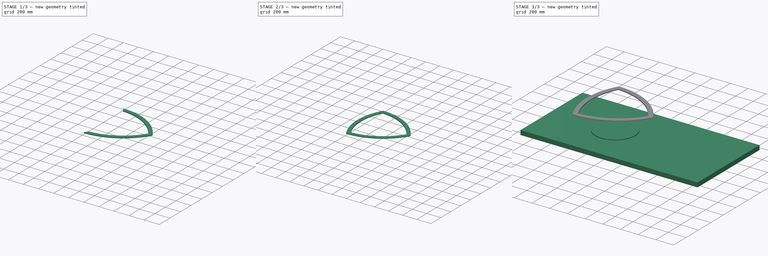
[diagram: build sequence overview — one tinted view per stage of 3, left to right]
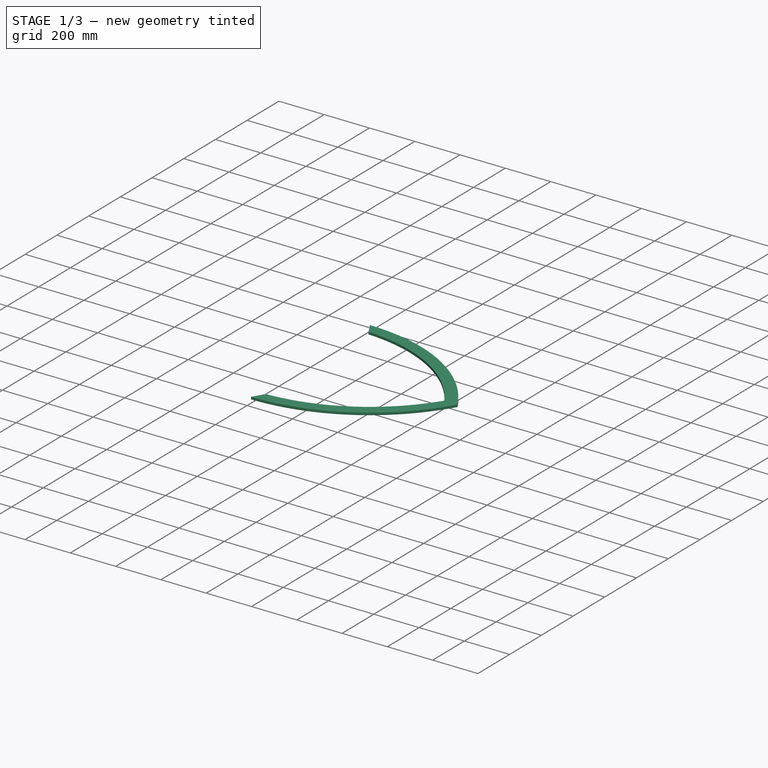
[diagram: stage 1 of 3 — iso view after this stage's code; geometry added in this stage tinted green]
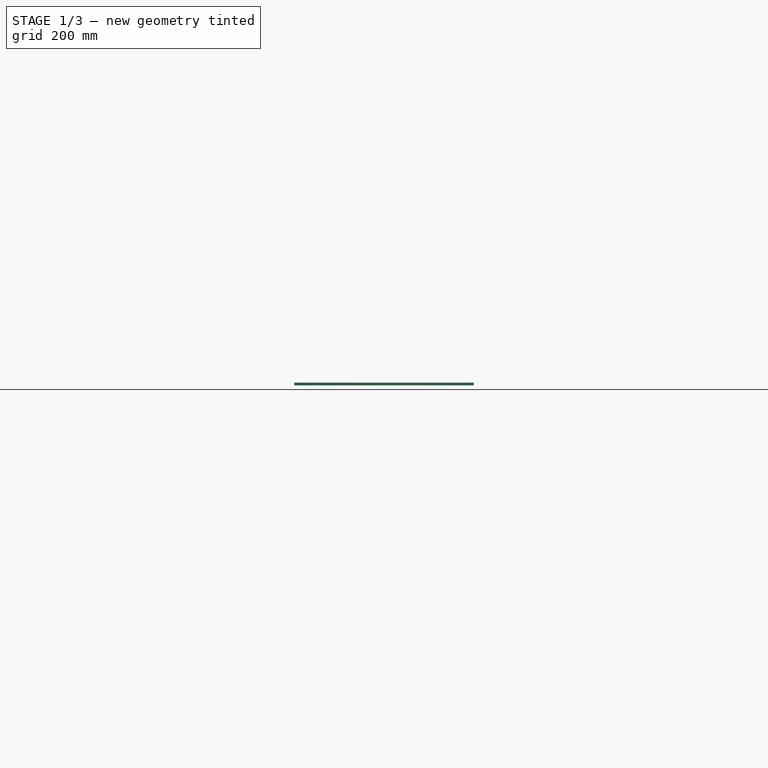
[diagram: stage 1 of 3 — front view after this stage's code; geometry added in this stage tinted green]
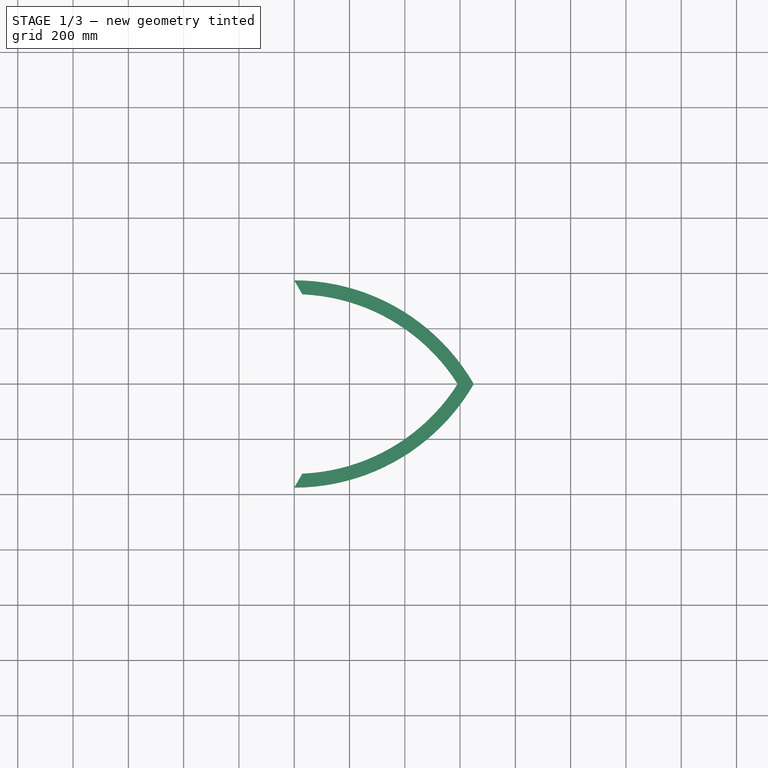
[diagram: stage 1 of 3 — top view after this stage's code; geometry added in this stage tinted green]
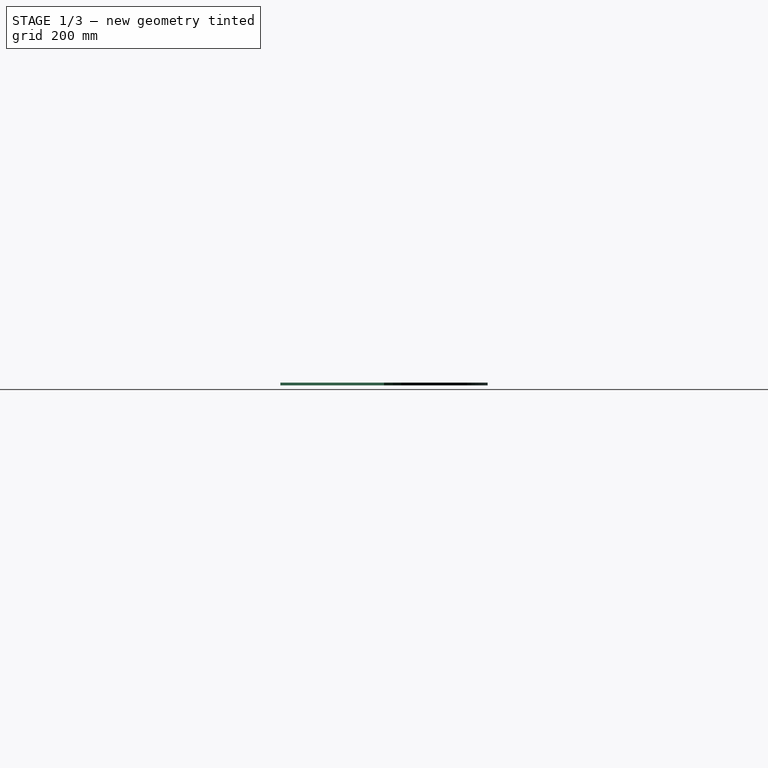
[diagram: stage 1 of 3 — right view after this stage's code; geometry added in this stage tinted green]
FCSTD DOCUMENT  (FreeCAD 0.21R33771 (Git))
Label: Dartring
License: All rights reserved
LicenseURL: https://en.wikipedia.org/wiki/All_rights_reserved
objects: Sketcher::SketchObject×3, PartDesign::Pad×3, PartDesign::Body×2, PartDesign::ShapeBinder×1, Part::Cylinder×1, Part::Box×1, Part::Fuse×1
note: 15 computed .brp shape members not serialized (recipe doc carries the construction recipe); baked Part::Feature solids carry a one-line shape summary decoded from their .brp

FEATURE [Sketcher::SketchObject] Sketch003
  FullyConstrained = true
  MapMode = 5
  Support = -> [XY_Plane003]
  sketch-geometry (4):
    g0: ArcOfCircle CenterX=0 CenterY=-375 CenterZ=0 NormalX=0 NormalY=0 NormalZ=1 AngleXU=0 Radius=750 StartAngle=0.523599 EndAngle=1.5708
    g1: ArcOfCircle CenterX=0 CenterY=-375 CenterZ=0 NormalX=0 NormalY=0 NormalZ=1 AngleXU=0 Radius=700 StartAngle=0.565353 EndAngle=1.52904
    g2: LineSegment StartX=0 StartY=375 StartZ=0 EndX=29.2198 EndY=324.39 EndZ=0
    g3: LineSegment StartX=591.08 StartY=1.137e-13 StartZ=0 EndX=649.519 EndY=0 EndZ=0
  constraints (15):
    c: PointOnObject(g0,g-2)
    c: PointOnObject(g0,g-1)
    c: PointOnObject(g0,g-2)
    c: Angle(g0) = 1.0472
    c: Radius(g0) = 750
    c: Coincident(g1,g0)
    c: PointOnObject(g1,g-1)
    c: Coincident(g2,g0)
    c: Coincident(g2,g1)
    c: Radius(g1) = 700
    c: Angle(g-2,g2) = 0.523599
    c: Coincident(g3,g1)
    c: Coincident(g3,g0)
    c: DistanceY(g-1,g0) = 375
    c: DistanceX(g-1,g0) = 649.519
FEATURE [Sketcher::SketchObject] Sketch004
  FullyConstrained = true
  MapMode = 5
  Support = -> [XY_Plane003]
  sketch-geometry (4):
    g0: ArcOfCircle CenterX=0 CenterY=375 CenterZ=0 NormalX=0 NormalY=0 NormalZ=1 AngleXU=0 Radius=750 StartAngle=4.71239 EndAngle=5.75959
    g1: ArcOfCircle CenterX=0 CenterY=375 CenterZ=0 NormalX=0 NormalY=0 NormalZ=1 AngleXU=0 Radius=700 StartAngle=4.75414 EndAngle=5.71783
    g2: LineSegment StartX=-1.378e-13 StartY=-375 StartZ=0 EndX=29.2198 EndY=-324.39 EndZ=0
    g3: LineSegment StartX=591.08 StartY=-5.68e-14 StartZ=0 EndX=649.519 EndY=0 EndZ=0
  constraints (13):
    c: PointOnObject(g0,g-2)
    c: PointOnObject(g0,g-2)
    c: PointOnObject(g0,g-1)
    c: Angle(g0) = 1.0472
    c: Radius(g0) = 750
    c: Coincident(g1,g0)
    c: PointOnObject(g1,g-1)
    c: Radius(g1) = 700
    c: Coincident(g2,g0)
    c: Coincident(g2,g1)
    c: Angle(g2,g-2) = 0.523599
    c: Coincident(g3,g1)
    c: Coincident(g3,g0)
FEATURE [Sketcher::SketchObject] Sketch005
  FullyConstrained = true
  MapMode = 5
  Support = -> [XY_Plane003]
  sketch-geometry (4):
    g0: ArcOfCircle CenterX=649.519 CenterY=0 CenterZ=0 NormalX=0 NormalY=0 NormalZ=1 AngleXU=0 Radius=750 StartAngle=2.61799 EndAngle=3.66519
    g1: LineSegment StartX=0 StartY=-375 StartZ=0 EndX=29.2198 EndY=-324.39 EndZ=0
    g2: ArcOfCircle CenterX=649.519 CenterY=0 CenterZ=0 NormalX=0 NormalY=0 NormalZ=1 AngleXU=0 Radius=700 StartAngle=2.65975 EndAngle=3.62344
    g3: LineSegment StartX=0 StartY=375 StartZ=0 EndX=29.2198 EndY=324.39 EndZ=0
  constraints (13):
    c: PointOnObject(g0,g-1)
    c: PointOnObject(g0,g-2)
    c: PointOnObject(g0,g-2)
    c: Radius(g0) = 750
    c: Angle(g0) = 1.0472
    c: Coincident(g1,g0)
    c: Angle(g-1,g1) = 1.0472
    c: Coincident(g2,g0)
    c: Coincident(g2,g1)
    c: Radius(g2) = 700
    c: Coincident(g3,g0)
    c: Coincident(g3,g2)
    c: Angle(g-2,g3) = 0.523599
FEATURE [PartDesign::Pad] Pad003
  Direction = (0,0,1)
  Length = 10
  Length2 = 10
  Profile = -> Sketch003
  ReferenceAxis = -> Sketch003 [N_Axis]
  Type = 0
FEATURE [PartDesign::Body] Body003
  Group = -> [Sketch003,Pad003,Sketch005,Pad005,Sketch004]
  Origin = -> Origin003
  Tip = -> Pad005
FEATURE [PartDesign::ShapeBinder] ShapeBinder
  Support = -> [Sketch004]
  TraceSupport = false
FEATURE [PartDesign::Pad] Pad
  Direction = (0,0,1)
  Length = 10
  Length2 = 10
  Profile = -> ShapeBinder
  Type = 0
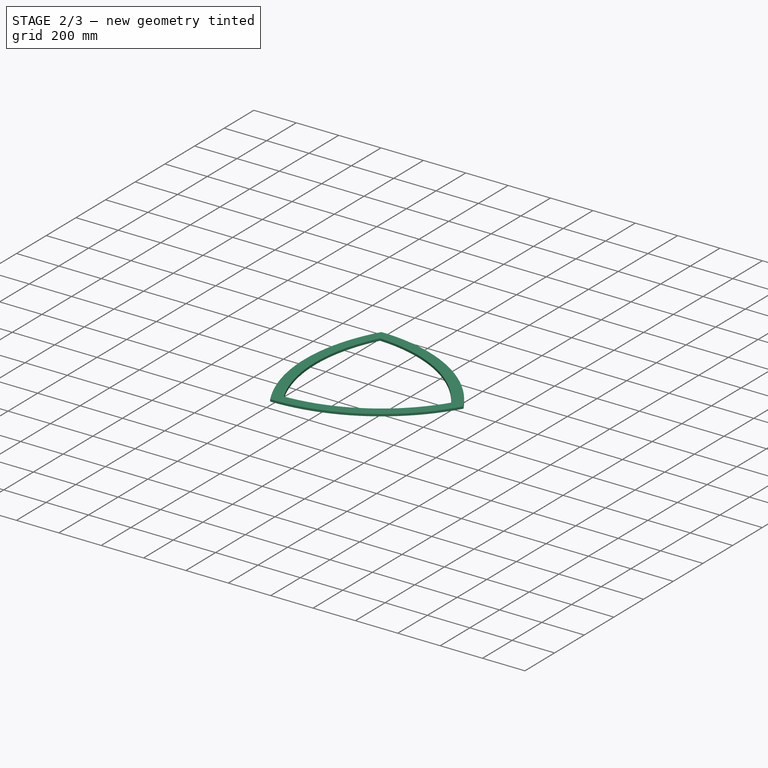
[diagram: stage 2 of 3 — iso view after this stage's code; geometry added in this stage tinted green]
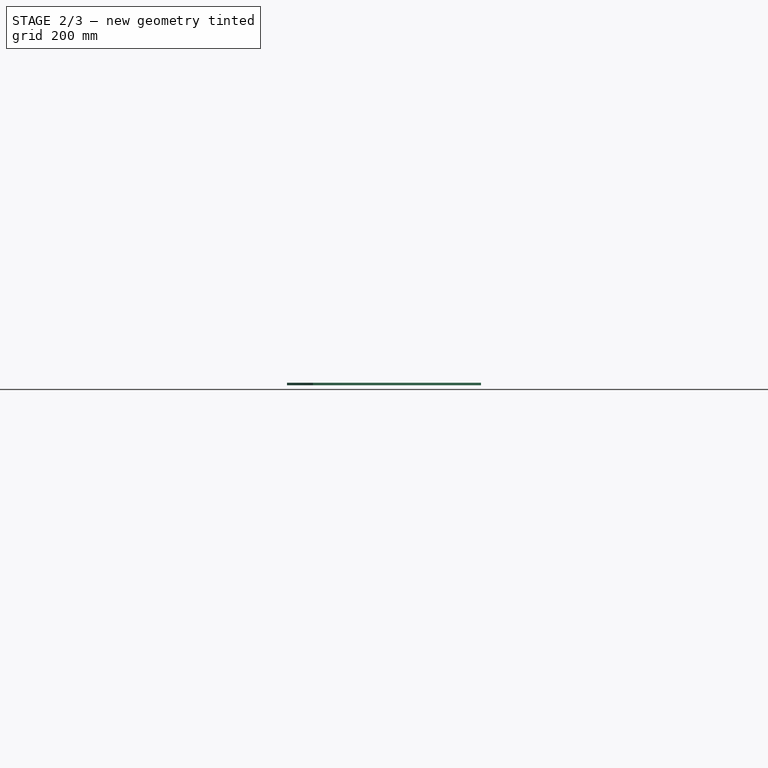
[diagram: stage 2 of 3 — front view after this stage's code; geometry added in this stage tinted green]
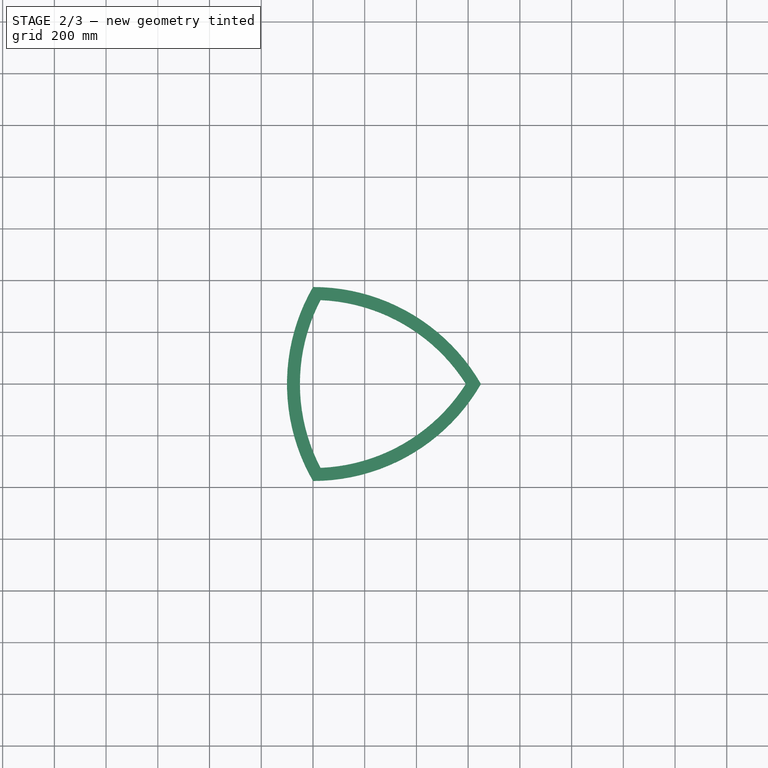
[diagram: stage 2 of 3 — top view after this stage's code; geometry added in this stage tinted green]
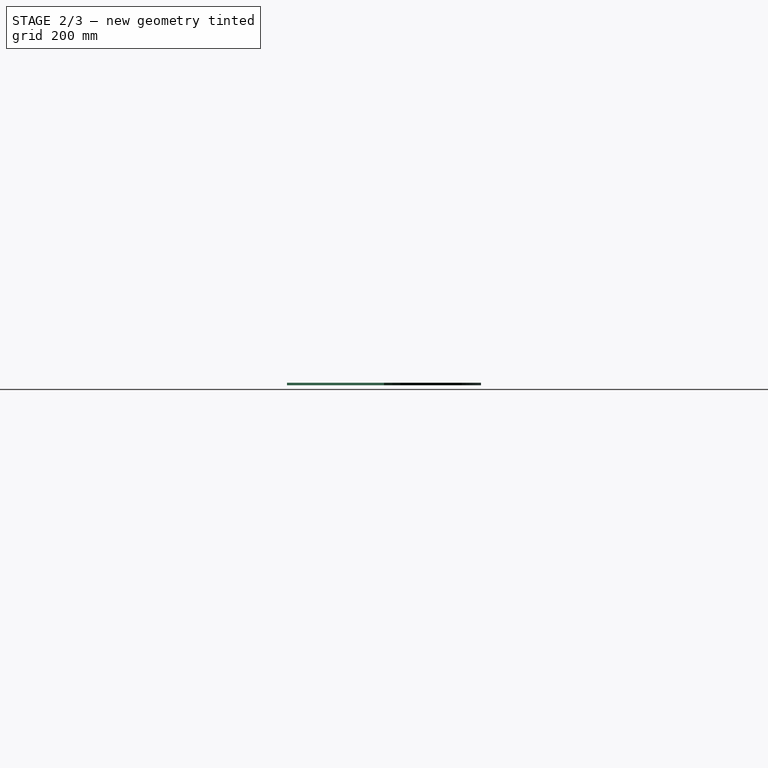
[diagram: stage 2 of 3 — right view after this stage's code; geometry added in this stage tinted green]
FEATURE [PartDesign::Pad] Pad005
  BaseFeature = -> Pad003
  Direction = (0,0,1)
  Length = 10
  Length2 = 10
  Profile = -> Sketch005
  ReferenceAxis = -> Sketch005 [N_Axis]
  Type = 0
FEATURE [Part::Fuse] Fusion
  Base = -> Body003
  Placement = pos=(0,0,236) rot=(0,0,1;0rad)
  Tool = -> Body004
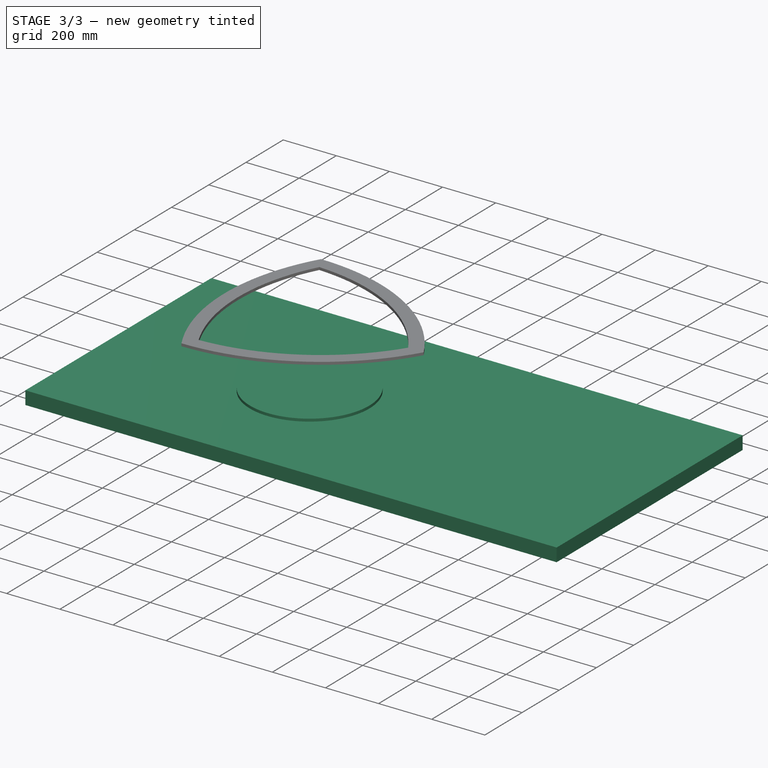
[diagram: stage 3 of 3 — iso view after this stage's code; geometry added in this stage tinted green]
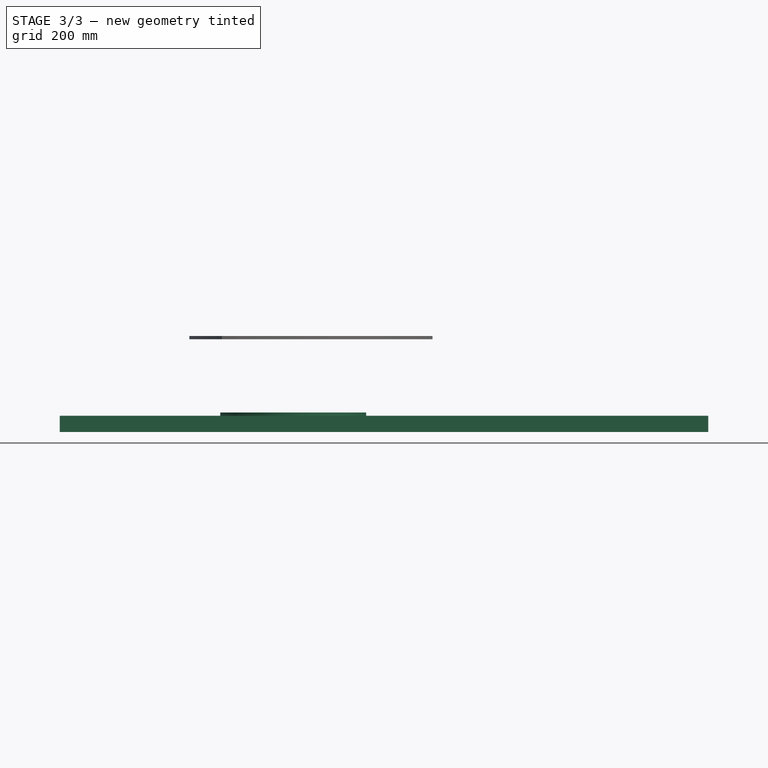
[diagram: stage 3 of 3 — front view after this stage's code; geometry added in this stage tinted green]
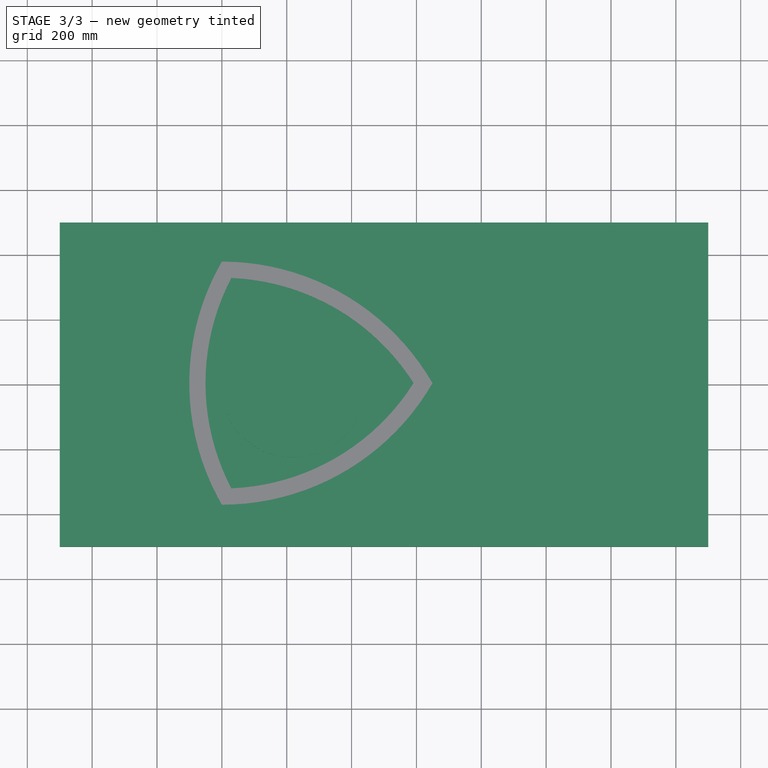
[diagram: stage 3 of 3 — top view after this stage's code; geometry added in this stage tinted green]
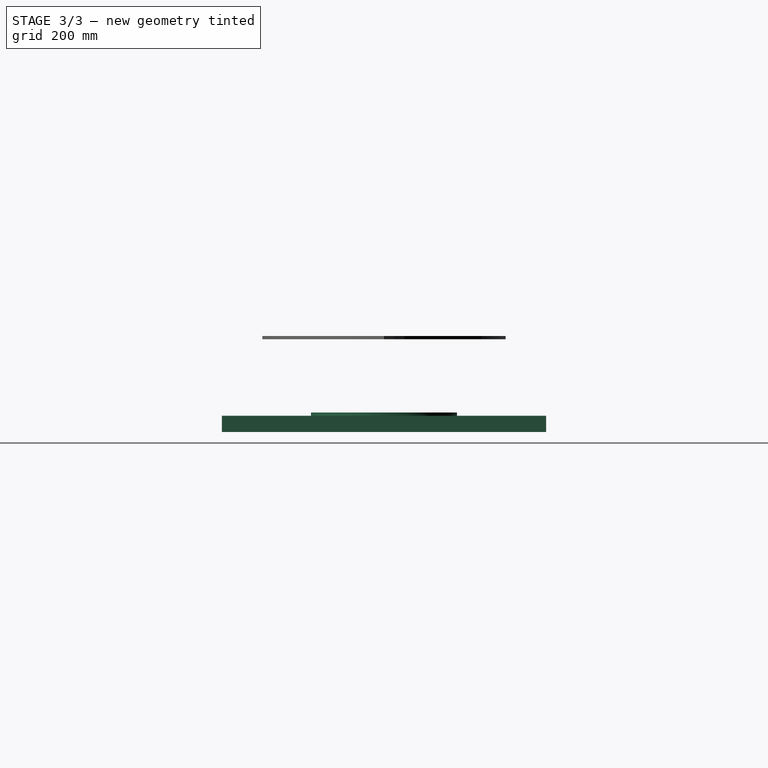
[diagram: stage 3 of 3 — right view after this stage's code; geometry added in this stage tinted green]
FEATURE [PartDesign::Body] Body004
  Group = -> [ShapeBinder,Pad]
  Origin = -> Origin004
  Tip = -> Pad
FEATURE [Part::Cylinder] Cylinder
  Angle = 360
  AttacherType = Attacher::AttachEngine3D
  FirstAngle = 0
  Height = 10
  Placement = pos=(220,0,0) rot=(0,0,1;0rad)
  Radius = 225
  SecondAngle = 0
FEATURE [Part::Box] Box  label="Cube"
  AttacherType = Attacher::AttachEngine3D
  Height = 50
  Length = 2000
  Placement = pos=(-500,-500,-50) rot=(0,0,1;0rad)
  Width = 1000
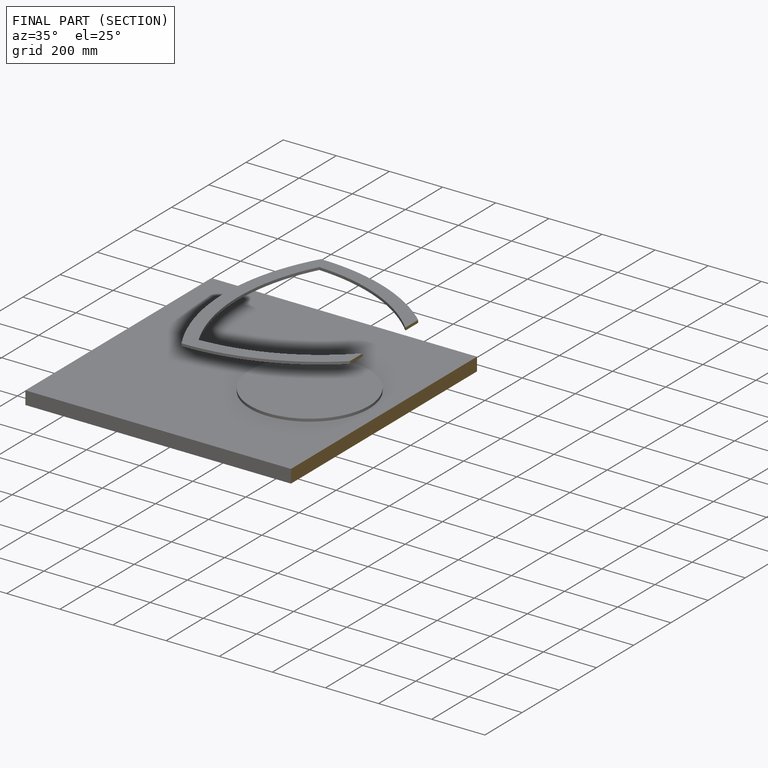
[diagram: finished part — half-section view (interior)]
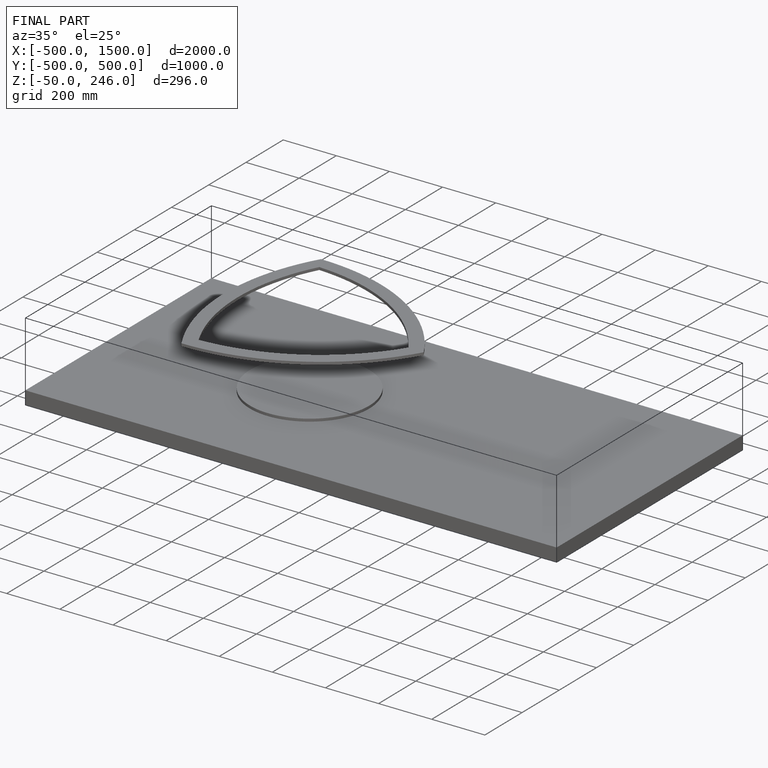
[diagram: finished part — iso view with bounding-box wireframe]
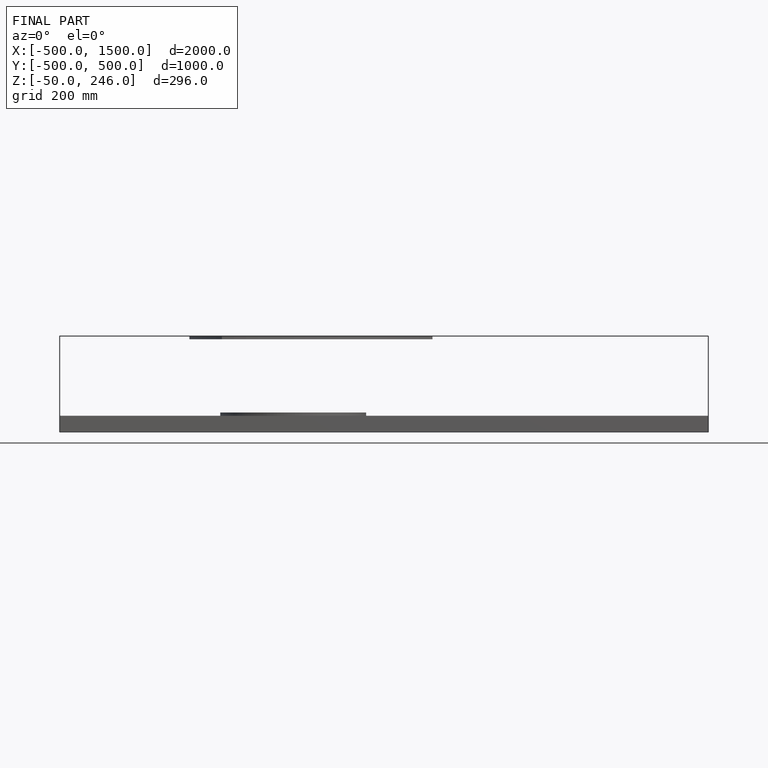
[diagram: finished part — front view with bounding-box wireframe]
